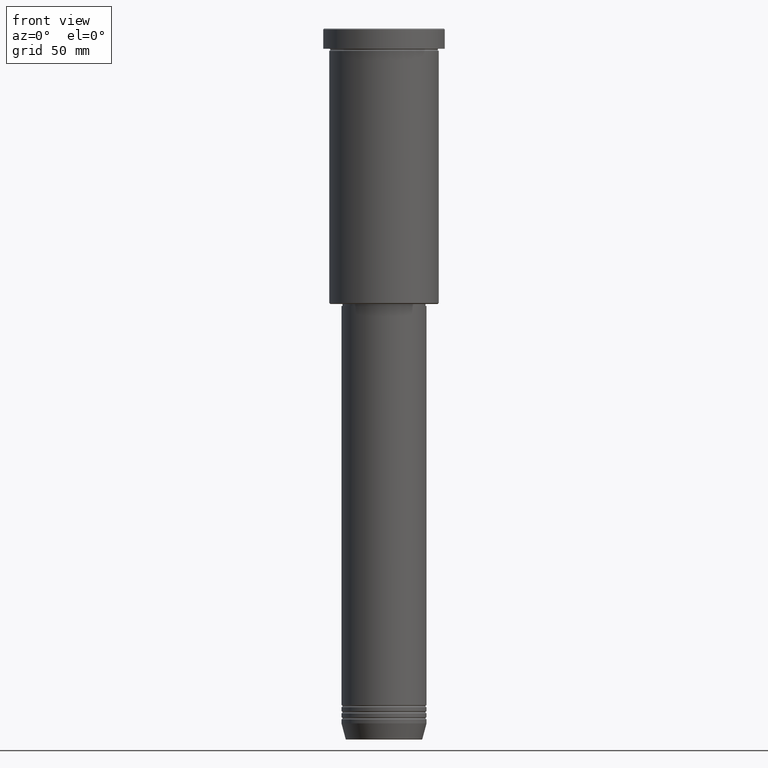
[diagram: clean part render]
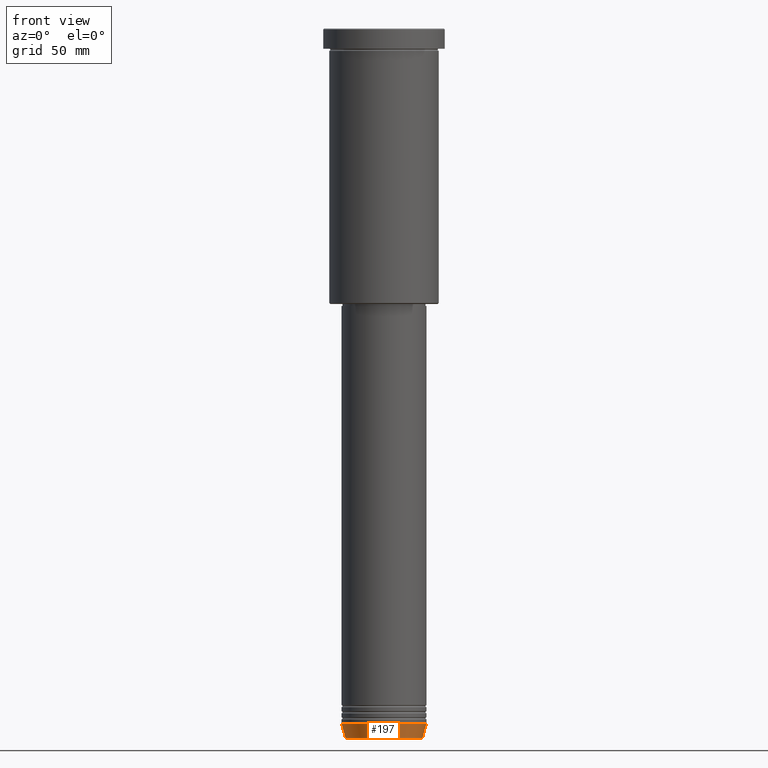
[diagram: same view with one face highlighted and labeled with its STEP entity id]
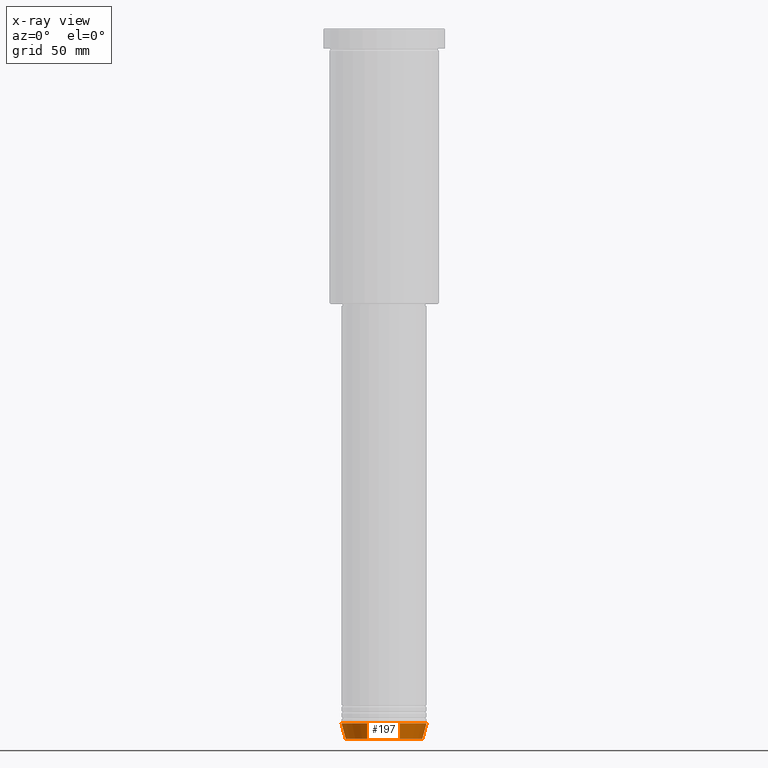
[diagram: x-ray of the same camera — body ghosted, the highlighted face saturated]
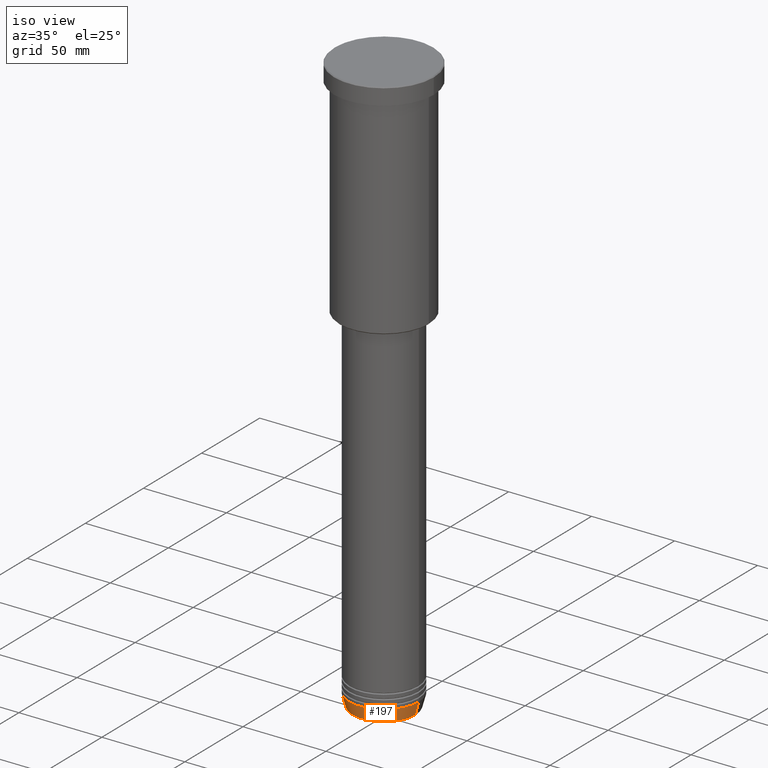
[diagram: same view with one face highlighted and labeled with its STEP entity id]
A machine part, front view. The second image highlights one B-rep face of the part: STEP entity #197.
The next image is the same camera in x-ray: the body ghosted, the highlighted face saturated — about 0% of this face is hidden behind the body in this view.
A second angle (iso view) of the same face is appended — the face is thin or edge-on in the first view.
In plain terms, the highlighted conical surface has half-angle 15 deg.
Its self-contained STEP definition (entity closure, byte-faithful):
#40 = CARTESIAN_POINT ( 'NONE',  ( 21.00000000000000000, 0.000000000000000000, -343.0000000000000000 ) ) ;
#51 = DIRECTION ( 'NONE',  ( 0.2588190451025212391, 0.000000000000000000, 0.9659258262890680902 ) ) ;
#60 = ORIENTED_EDGE ( 'NONE', *, *, #681, .F. ) ;
#62 = CARTESIAN_POINT ( 'NONE',  ( 18.95570587970606624, 0.000000000000000000, -350.6294095225512137 ) ) ;
#69 = AXIS2_PLACEMENT_3D ( 'NONE', #248, #436, #997 ) ;
#116 = VERTEX_POINT ( 'NONE', #269 ) ;
#123 = EDGE_CURVE ( 'NONE', #787, #767, #328, .T. ) ;
#139 = EDGE_LOOP ( 'NONE', ( #603, #574, #207, #60 ) ) ;
#164 = AXIS2_PLACEMENT_3D ( 'NONE', #422, #610, #1070 ) ;
#197 = ADVANCED_FACE ( 'NONE', ( #880 ), #748, .T. ) ;
#207 = ORIENTED_EDGE ( 'NONE', *, *, #123, .T. ) ;
#225 = EDGE_CURVE ( 'NONE', #116, #688, #803, .T. ) ;
#248 = CARTESIAN_POINT ( 'NONE',  ( 0.000000000000000000, 0.000000000000000000, -343.0000000000000000 ) ) ;
#260 = VECTOR ( 'NONE', #1041, 1000.000000000000114 ) ;
#269 = CARTESIAN_POINT ( 'NONE',  ( -18.95570587970606624, 2.446581365662755730E-15, -350.6294095225512137 ) ) ;
#328 = LINE ( 'NONE', #40, #482 ) ;
#396 = DIRECTION ( 'NONE',  ( -0.000000000000000000, -0.000000000000000000, 1.000000000000000000 ) ) ;
#422 = CARTESIAN_POINT ( 'NONE',  ( 0.000000000000000000, 0.000000000000000000, -343.0000000000000000 ) ) ;
#436 = DIRECTION ( 'NONE',  ( -0.000000000000000000, -0.000000000000000000, 1.000000000000000000 ) ) ;
#482 = VECTOR ( 'NONE', #51, 1000.000000000000114 ) ;
#538 = CARTESIAN_POINT ( 'NONE',  ( 21.00000000000000000, 0.000000000000000000, -343.0000000000000000 ) ) ;
#541 = EDGE_CURVE ( 'NONE', #116, #787, #1006, .T. ) ;
#551 = CIRCLE ( 'NONE', #69, 21.00000000000000000 ) ;
#574 = ORIENTED_EDGE ( 'NONE', *, *, #541, .T. ) ;
#598 = DIRECTION ( 'NONE',  ( 1.000000000000000000, 0.000000000000000000, 0.000000000000000000 ) ) ;
#603 = ORIENTED_EDGE ( 'NONE', *, *, #225, .F. ) ;
#610 = DIRECTION ( 'NONE',  ( -0.000000000000000000, -0.000000000000000000, 1.000000000000000000 ) ) ;
#654 = AXIS2_PLACEMENT_3D ( 'NONE', #870, #396, #598 ) ;
#681 = EDGE_CURVE ( 'NONE', #688, #767, #551, .T. ) ;
#688 = VERTEX_POINT ( 'NONE', #834 ) ;
#748 = CONICAL_SURFACE ( 'NONE', #164, 21.00000000000000000, 0.2617993877991499629 ) ;
#767 = VERTEX_POINT ( 'NONE', #538 ) ;
#787 = VERTEX_POINT ( 'NONE', #62 ) ;
#803 = LINE ( 'NONE', #901, #260 ) ;
#834 = CARTESIAN_POINT ( 'NONE',  ( -21.00000000000000000, 2.571758278209441661E-15, -343.0000000000000000 ) ) ;
#870 = CARTESIAN_POINT ( 'NONE',  ( 0.000000000000000000, 0.000000000000000000, -350.6294095225512137 ) ) ;
#880 = FACE_OUTER_BOUND ( 'NONE', #139, .T. ) ;
#901 = CARTESIAN_POINT ( 'NONE',  ( -21.00000000000000000, 2.571758278209441661E-15, -343.0000000000000000 ) ) ;
#997 = DIRECTION ( 'NONE',  ( 1.000000000000000000, 0.000000000000000000, 0.000000000000000000 ) ) ;
#1006 = CIRCLE ( 'NONE', #654, 18.95570587970606624 ) ;
#1041 = DIRECTION ( 'NONE',  ( -0.2588190451025212391, 3.169619151431771721E-17, 0.9659258262890680902 ) ) ;
#1070 = DIRECTION ( 'NONE',  ( 1.000000000000000000, 0.000000000000000000, 0.000000000000000000 ) ) ;